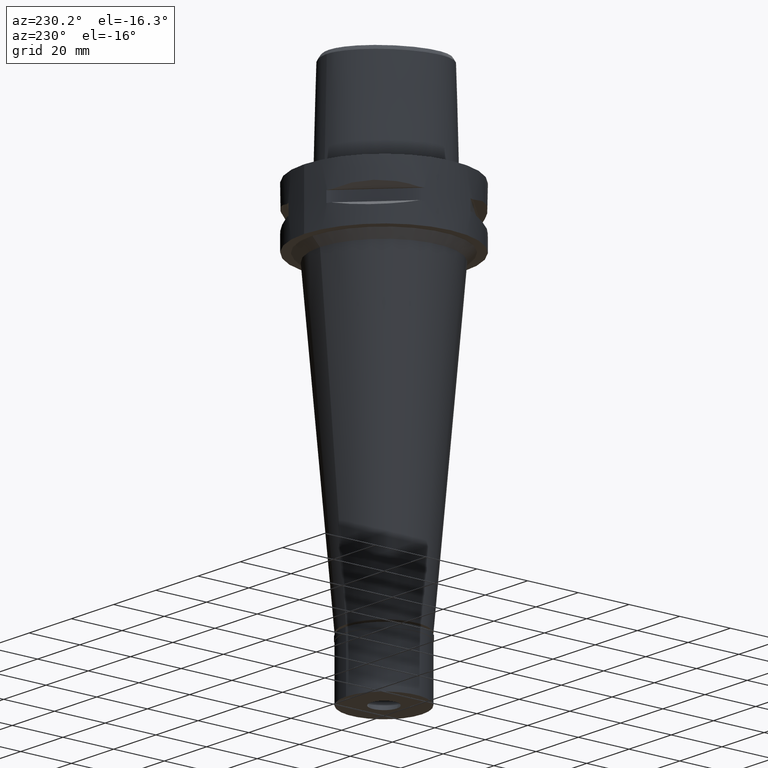
[diagram: clean part render]
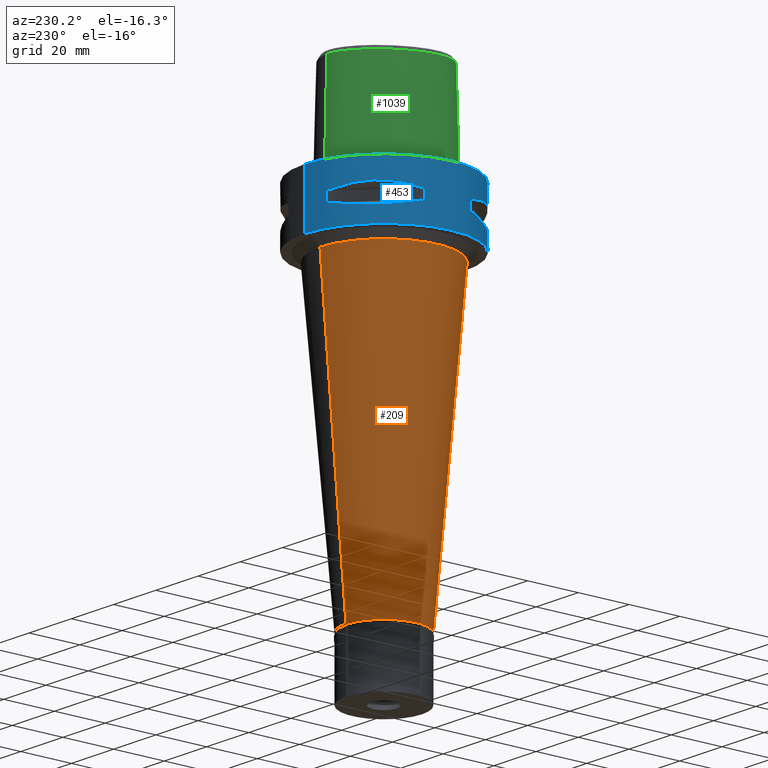
[diagram: same view with three faces highlighted in distinct colors, each labeled with its STEP entity id]
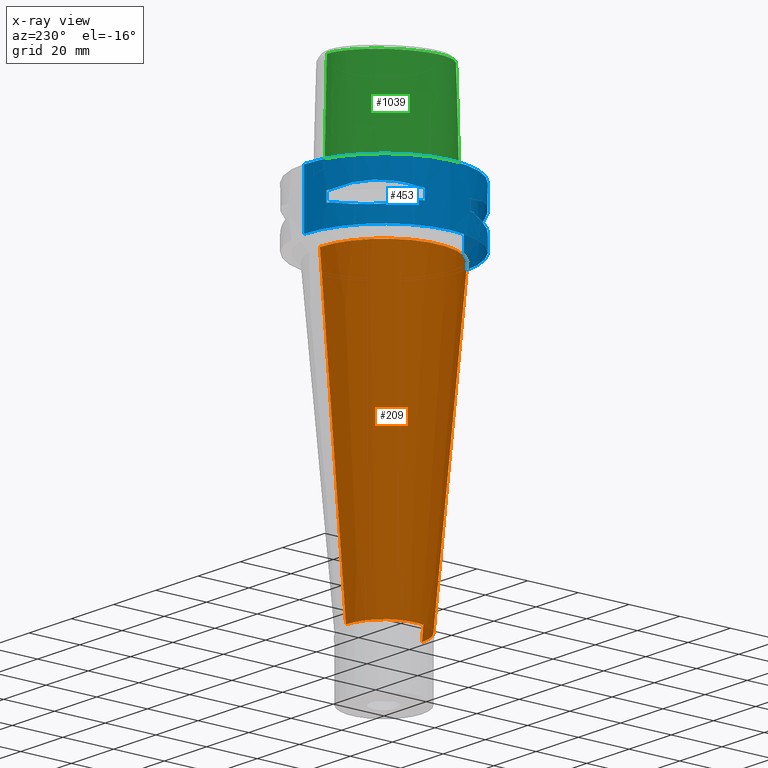
[diagram: x-ray of the same camera — body ghosted, the three highlighted faces saturated]
A machine part, auxiliary view with three faces highlighted in distinct colors.
The next image is the same camera in x-ray (body ghosted, the three faces saturated) — at least one of them is partly hidden behind the body in this view.
Their STEP definitions:

[orange] entity #209 — the highlighted conical surface has half-angle 5 deg.
#23 = CARTESIAN_POINT ( 'NONE',  ( 0.0000000000000000000, 25.25367136523999889, -25.00000000000000000 ) ) ;
#36 = DIRECTION ( 'NONE',  ( 0.0000000000000000000, -1.000000000000000000, 0.0000000000000000000 ) ) ;
#138 = VERTEX_POINT ( 'NONE', #4093 ) ;
#167 = AXIS2_PLACEMENT_3D ( 'NONE', #2428, #4799, #36 ) ;
#209 = ADVANCED_FACE ( 'NONE', ( #3715 ), #883, .T. ) ;
#307 = VECTOR ( 'NONE', #3526, 1000.000000000000227 ) ;
#549 = EDGE_CURVE ( 'NONE', #1523, #758, #2286, .T. ) ;
#758 = VERTEX_POINT ( 'NONE', #3136 ) ;
#784 = DIRECTION ( 'NONE',  ( 0.0000000000000000000, -0.08715574274766398066, -0.9961946980917449901 ) ) ;
#832 = CARTESIAN_POINT ( 'NONE',  ( 0.0000000000000000000, -25.25367136523999889, -25.00000000000000000 ) ) ;
#883 = CONICAL_SURFACE ( 'NONE', #2998, 20.12683568262000122, 0.08726646259969973729 ) ;
#1054 = ORIENTED_EDGE ( 'NONE', *, *, #4336, .T. ) ;
#1215 = ORIENTED_EDGE ( 'NONE', *, *, #3475, .T. ) ;
#1337 = CARTESIAN_POINT ( 'NONE',  ( 0.0000000000000000000, -1.023804724086999888E-14, -142.1999999999999886 ) ) ;
#1523 = VERTEX_POINT ( 'NONE', #3384 ) ;
#1774 = ORIENTED_EDGE ( 'NONE', *, *, #2547, .T. ) ;
#1801 = CIRCLE ( 'NONE', #4500, 15.00000000000000000 ) ;
#2286 = LINE ( 'NONE', #832, #307 ) ;
#2428 = CARTESIAN_POINT ( 'NONE',  ( 0.0000000000000000000, 0.0000000000000000000, -25.00000000000000000 ) ) ;
#2547 = EDGE_CURVE ( 'NONE', #138, #2775, #5063, .T. ) ;
#2775 = VERTEX_POINT ( 'NONE', #4771 ) ;
#2998 = AXIS2_PLACEMENT_3D ( 'NONE', #3250, #4062, #4446 ) ;
#3012 = VECTOR ( 'NONE', #784, 1000.000000000000227 ) ;
#3136 = CARTESIAN_POINT ( 'NONE',  ( 0.0000000000000000000, -15.00000000000000000, -142.1999999999999886 ) ) ;
#3250 = CARTESIAN_POINT ( 'NONE',  ( 0.0000000000000000000, -1.023804724086999888E-14, -83.59999999999999432 ) ) ;
#3384 = CARTESIAN_POINT ( 'NONE',  ( 0.0000000000000000000, -25.25367136523999889, -25.00000000000000000 ) ) ;
#3446 = CIRCLE ( 'NONE', #167, 25.25367136523999889 ) ;
#3475 = EDGE_CURVE ( 'NONE', #1523, #138, #3446, .T. ) ;
#3526 = DIRECTION ( 'NONE',  ( 0.0000000000000000000, 0.08715574274766398066, -0.9961946980917449901 ) ) ;
#3680 = ORIENTED_EDGE ( 'NONE', *, *, #549, .F. ) ;
#3702 = DIRECTION ( 'NONE',  ( 0.0000000000000000000, 1.000000000000000000, 0.0000000000000000000 ) ) ;
#3715 = FACE_OUTER_BOUND ( 'NONE', #3785, .T. ) ;
#3785 = EDGE_LOOP ( 'NONE', ( #1054, #3680, #1215, #1774 ) ) ;
#4062 = DIRECTION ( 'NONE',  ( 0.0000000000000000000, 0.0000000000000000000, 1.000000000000000000 ) ) ;
#4093 = CARTESIAN_POINT ( 'NONE',  ( 0.0000000000000000000, 25.25367136523999889, -25.00000000000000000 ) ) ;
#4336 = EDGE_CURVE ( 'NONE', #2775, #758, #1801, .T. ) ;
#4446 = DIRECTION ( 'NONE',  ( 0.0000000000000000000, 1.000000000000000000, 0.0000000000000000000 ) ) ;
#4500 = AXIS2_PLACEMENT_3D ( 'NONE', #1337, #4508, #3702 ) ;
#4508 = DIRECTION ( 'NONE',  ( 0.0000000000000000000, 0.0000000000000000000, 1.000000000000000000 ) ) ;
#4771 = CARTESIAN_POINT ( 'NONE',  ( 0.0000000000000000000, 15.00000000000000000, -142.1999999999999886 ) ) ;
#4799 = DIRECTION ( 'NONE',  ( 0.0000000000000000000, 0.0000000000000000000, -1.000000000000000000 ) ) ;
#5063 = LINE ( 'NONE', #23, #3012 ) ;

[blue] entity #453 — the highlighted cylindrical surface (partial cylindrical patch) has radius 31.5 mm, axis along (0, 0, -1).
#16 = DIRECTION ( 'NONE',  ( -0.9433937698468619626, 0.3316748332540863653, 0.0000000000000000000 ) ) ;
#24 = VERTEX_POINT ( 'NONE', #2722 ) ;
#33 = CARTESIAN_POINT ( 'NONE',  ( -26.29071741523710060, 17.35163608579668804, -15.46976201925415317 ) ) ;
#64 = VECTOR ( 'NONE', #4036, 1000.000000000000000 ) ;
#100 = LINE ( 'NONE', #4451, #1714 ) ;
#114 = CARTESIAN_POINT ( 'NONE',  ( -29.71690375017999841, 10.44775724750000023, -9.949999999998999201 ) ) ;
#136 = CARTESIAN_POINT ( 'NONE',  ( -20.64154884328072370, 23.90617837147176772, -8.160627831309685831 ) ) ;
#159 = CARTESIAN_POINT ( 'NONE',  ( 0.0000000000000000000, 0.0000000000000000000, -22.00000000000000000 ) ) ;
#174 = B_SPLINE_CURVE_WITH_KNOTS ( 'NONE', 3,
 ( #1035, #1414, #2963, #2573, #3364, #4152, #4921, #5031, #3827, #267, #5008, #1469, #3470, #4209, #2232, #1821, #2253, #1514, #2710, #748, #3100, #4589, #1159, #2306 ),
 .UNSPECIFIED., .F., .F.,
 ( 4, 1, 1, 1, 1, 1, 2, 2, 2, 1, 1, 1, 1, 1, 2, 2, 4 ),
 ( 0.0000000000000000000, 0.1249999999999912292, 0.1874999999999869826, 0.2187499999999850120, 0.2343749999999839295, 0.2421874999999835409, 0.2460937499999835687, 0.2499999999999836242, 0.4999999999999924505, 0.6249999999999968914, 0.6874999999999992228, 0.7187500000000003331, 0.7343750000000009992, 0.7421875000000014433, 0.7460937500000016653, 0.7500000000000019984, 1.000000000000000000 ),
 .UNSPECIFIED. ) ;
#177 = CIRCLE ( 'NONE', #3936, 31.50000000000000000 ) ;
#204 = ORIENTED_EDGE ( 'NONE', *, *, #909, .F. ) ;
#228 = VECTOR ( 'NONE', #4316, 1000.000000000000000 ) ;
#233 = CARTESIAN_POINT ( 'NONE',  ( -29.71690375017999841, -10.44775724750000023, -9.949999999998999201 ) ) ;
#251 = CARTESIAN_POINT ( 'NONE',  ( -14.84430321578703804, -27.88210502983994843, -8.906184731967037749 ) ) ;
#267 = CARTESIAN_POINT ( 'NONE',  ( -26.58330558444475145, -16.89910283486517528, -15.40446471307230070 ) ) ;
#289 = VERTEX_POINT ( 'NONE', #4418 ) ;
#290 = CARTESIAN_POINT ( 'NONE',  ( 0.0000000000000000000, 0.0000000000000000000, -14.05000000000000071 ) ) ;
#300 = B_SPLINE_CURVE_WITH_KNOTS ( 'NONE', 3,
 ( #413, #4406, #3130, #1204, #2329, #2835, #1254, #1972, #3969, #3949, #4740, #2809, #4796, #3518, #3235, #3543, #33, #1611, #1281, #2759, #3897, #4334, #387, #2049 ),
 .UNSPECIFIED., .F., .F.,
 ( 4, 1, 1, 1, 1, 1, 2, 2, 2, 1, 1, 1, 1, 1, 2, 2, 4 ),
 ( 0.0000000000000000000, 0.1249999999999917843, 0.1874999999999877320, 0.2187499999999857059, 0.2343749999999849287, 0.2421874999999843736, 0.2460937499999842071, 0.2499999999999840128, 0.4999999999999846789, 0.6249999999999850120, 0.6874999999999850120, 0.7187499999999851230, 0.7343749999999852340, 0.7421874999999852340, 0.7460937499999851230, 0.7499999999999851230, 1.000000000000000000 ),
 .UNSPECIFIED. ) ;
#315 = DIRECTION ( 'NONE',  ( -0.2851174276831918153, -0.9584925938322735872, 0.0000000000000000000 ) ) ;
#318 = VERTEX_POINT ( 'NONE', #555 ) ;
#331 = CARTESIAN_POINT ( 'NONE',  ( 0.0000000000000000000, 0.0000000000000000000, -9.950000000000001066 ) ) ;
#333 = CIRCLE ( 'NONE', #4918, 31.50000000000000711 ) ;
#340 = DIRECTION ( 'NONE',  ( 0.0000000000000000000, 0.0000000000000000000, -1.000000000000000000 ) ) ;
#387 = CARTESIAN_POINT ( 'NONE',  ( -28.91382665368951876, 12.73197616788052500, -14.65467361753852060 ) ) ;
#393 = DIRECTION ( 'NONE',  ( 0.0000000000000000000, 0.0000000000000000000, 1.000000000000000000 ) ) ;
#397 = VERTEX_POINT ( 'NONE', #4168 ) ;
#413 = CARTESIAN_POINT ( 'NONE',  ( -10.44775724750000023, 29.71690375017999841, -14.05000000000000071 ) ) ;
#415 = AXIS2_PLACEMENT_3D ( 'NONE', #1111, #1920, #1841 ) ;
#453 = ADVANCED_FACE ( 'NONE', ( #3737, #609, #3328 ), #4884, .T. ) ;
#528 = CARTESIAN_POINT ( 'NONE',  ( -27.88210502983995553, 14.84430321578703271, -8.906184731967041301 ) ) ;
#532 = LINE ( 'NONE', #2409, #1142 ) ;
#538 = CARTESIAN_POINT ( 'NONE',  ( -30.19251670572000279, 8.981198972019999616, -14.05000000000000071 ) ) ;
#555 = CARTESIAN_POINT ( 'NONE',  ( -8.981198972019999616, -30.19251670572000279, -14.05000000000000071 ) ) ;
#590 = EDGE_CURVE ( 'NONE', #318, #1471, #3454, .T. ) ;
#603 = CARTESIAN_POINT ( 'NONE',  ( -30.19251670572000279, -8.981198972017999438, -14.05000000000000071 ) ) ;
#609 = FACE_BOUND ( 'NONE', #1354, .T. ) ;
#636 = VERTEX_POINT ( 'NONE', #2361 ) ;
#658 = CIRCLE ( 'NONE', #4177, 31.50000000000001776 ) ;
#703 = CARTESIAN_POINT ( 'NONE',  ( -29.71690375017999841, -10.44775724750000023, -9.949999999998999201 ) ) ;
#743 = EDGE_CURVE ( 'NONE', #397, #4087, #2510, .T. ) ;
#748 = CARTESIAN_POINT ( 'NONE',  ( -16.98999780422078132, -26.52527364208593141, -15.41788098766319060 ) ) ;
#796 = DIRECTION ( 'NONE',  ( -0.9584925938322735872, 0.2851174276831918153, 0.0000000000000000000 ) ) ;
#801 = EDGE_CURVE ( 'NONE', #2906, #4087, #4856, .T. ) ;
#858 = CARTESIAN_POINT ( 'NONE',  ( -12.70092055730904868, 28.92474506844682125, -9.353547358226720121 ) ) ;
#900 = VERTEX_POINT ( 'NONE', #4782 ) ;
#909 = EDGE_CURVE ( 'NONE', #4790, #289, #2086, .T. ) ;
#938 = LINE ( 'NONE', #2180, #4756 ) ;
#954 = VERTEX_POINT ( 'NONE', #4144 ) ;
#977 = AXIS2_PLACEMENT_3D ( 'NONE', #3903, #393, #16 ) ;
#1035 = CARTESIAN_POINT ( 'NONE',  ( -29.71690375017999841, -10.44775724750000023, -14.05000000000000071 ) ) ;
#1076 = CARTESIAN_POINT ( 'NONE',  ( -25.37277178168285374, -18.81455742163204548, -8.309746333127383977 ) ) ;
#1079 = ORIENTED_EDGE ( 'NONE', *, *, #590, .F. ) ;
#1111 = CARTESIAN_POINT ( 'NONE',  ( 0.0000000000000000000, 0.0000000000000000000, -9.950000000000001066 ) ) ;
#1142 = VECTOR ( 'NONE', #1192, 1000.000000000000000 ) ;
#1159 = CARTESIAN_POINT ( 'NONE',  ( -12.73197616787212993, -28.91382665369246752, -14.65467361753630549 ) ) ;
#1161 = DIRECTION ( 'NONE',  ( -0.3316748332540863653, 0.9433937698468619626, 0.0000000000000000000 ) ) ;
#1192 = DIRECTION ( 'NONE',  ( 0.0000000000000000000, 0.0000000000000000000, -1.000000000000000000 ) ) ;
#1204 = CARTESIAN_POINT ( 'NONE',  ( -15.11986997310366299, 27.64634172018154246, -15.11207862403683144 ) ) ;
#1234 = CIRCLE ( 'NONE', #1724, 31.50000000000000711 ) ;
#1254 = CARTESIAN_POINT ( 'NONE',  ( -16.70616724745912407, 26.70521063584489596, -15.37546661817712490 ) ) ;
#1281 = CARTESIAN_POINT ( 'NONE',  ( -26.48642424310478205, 17.05047092244226903, -15.42670883407652305 ) ) ;
#1326 = ORIENTED_EDGE ( 'NONE', *, *, #1826, .T. ) ;
#1354 = EDGE_LOOP ( 'NONE', ( #4287, #4114, #3876, #5022, #4421, #4956, #2067, #3334 ) ) ;
#1375 = DIRECTION ( 'NONE',  ( 0.0000000000000000000, 0.0000000000000000000, -1.000000000000000000 ) ) ;
#1385 = DIRECTION ( 'NONE',  ( 0.0000000000000000000, 0.0000000000000000000, 1.000000000000000000 ) ) ;
#1405 = CARTESIAN_POINT ( 'NONE',  ( -20.64154884328073081, -23.90617837147176061, -8.160613588465022161 ) ) ;
#1414 = CARTESIAN_POINT ( 'NONE',  ( -29.31542262584164504, -11.58970337495982328, -14.35229357167352049 ) ) ;
#1469 = CARTESIAN_POINT ( 'NONE',  ( -23.89673728055697310, -20.65093790435582122, -15.83935804901768307 ) ) ;
#1470 = CARTESIAN_POINT ( 'NONE',  ( 0.0000000000000000000, -31.50000000000000000, 0.0000000000000000000 ) ) ;
#1471 = VERTEX_POINT ( 'NONE', #2152 ) ;
#1478 = CARTESIAN_POINT ( 'NONE',  ( -18.81462633032051102, -25.37272068398778657, -8.309724968596489347 ) ) ;
#1514 = CARTESIAN_POINT ( 'NONE',  ( -17.14106442934748742, -26.42800887047532754, -15.43984550238493547 ) ) ;
#1611 = CARTESIAN_POINT ( 'NONE',  ( -26.42800887047543767, 17.14106442934696162, -15.43984550238475251 ) ) ;
#1618 = CARTESIAN_POINT ( 'NONE',  ( -30.19251670572000279, 8.981198972017999438, -14.05000000000000071 ) ) ;
#1639 = DIRECTION ( 'NONE',  ( 0.0000000000000000000, 0.0000000000000000000, -1.000000000000000000 ) ) ;
#1653 = EDGE_CURVE ( 'NONE', #4501, #3103, #3101, .T. ) ;
#1673 = CARTESIAN_POINT ( 'NONE',  ( -10.44775724750000023, 29.71690375017999841, -9.949999999998999201 ) ) ;
#1676 = VERTEX_POINT ( 'NONE', #2955 ) ;
#1714 = VECTOR ( 'NONE', #3254, 1000.000000000000000 ) ;
#1717 = CIRCLE ( 'NONE', #3847, 31.50000000000001776 ) ;
#1719 = DIRECTION ( 'NONE',  ( 0.0000000000000000000, 0.0000000000000000000, 1.000000000000000000 ) ) ;
#1724 = AXIS2_PLACEMENT_3D ( 'NONE', #1947, #4261, #1161 ) ;
#1749 = CARTESIAN_POINT ( 'NONE',  ( 0.0000000000000000000, 31.50000000000000000, 0.0000000000000000000 ) ) ;
#1785 = ORIENTED_EDGE ( 'NONE', *, *, #3996, .T. ) ;
#1794 = DIRECTION ( 'NONE',  ( 0.0000000000000000000, 0.0000000000000000000, -1.000000000000000000 ) ) ;
#1821 = CARTESIAN_POINT ( 'NONE',  ( -17.76952662671988392, -26.01217882834739470, -15.52665221626113912 ) ) ;
#1826 = EDGE_CURVE ( 'NONE', #2401, #4724, #2430, .T. ) ;
#1828 = CARTESIAN_POINT ( 'NONE',  ( 0.0000000000000000000, 0.0000000000000000000, 7.915000000000000036 ) ) ;
#1841 = DIRECTION ( 'NONE',  ( -0.9584925938322735872, -0.2851174276831918153, 0.0000000000000000000 ) ) ;
#1920 = DIRECTION ( 'NONE',  ( 0.0000000000000000000, 0.0000000000000000000, 1.000000000000000000 ) ) ;
#1947 = CARTESIAN_POINT ( 'NONE',  ( 0.0000000000000000000, 0.0000000000000000000, -14.05000000000000071 ) ) ;
#1972 = CARTESIAN_POINT ( 'NONE',  ( -16.80193241490601253, 26.64486562695759631, -15.38992683735703437 ) ) ;
#2000 = DIRECTION ( 'NONE',  ( -0.9433937698468619626, -0.3316748332540863653, 0.0000000000000000000 ) ) ;
#2007 = ORIENTED_EDGE ( 'NONE', *, *, #2706, .T. ) ;
#2049 = CARTESIAN_POINT ( 'NONE',  ( -29.71690375017999841, 10.44775724750000023, -14.05000000000000071 ) ) ;
#2057 = CARTESIAN_POINT ( 'NONE',  ( -10.44775724750000023, 29.71690375017999841, -14.05000000000000071 ) ) ;
#2067 = ORIENTED_EDGE ( 'NONE', *, *, #3786, .T. ) ;
#2086 = LINE ( 'NONE', #2468, #64 ) ;
#2148 = ORIENTED_EDGE ( 'NONE', *, *, #1653, .T. ) ;
#2149 = EDGE_CURVE ( 'NONE', #636, #397, #4090, .T. ) ;
#2152 = CARTESIAN_POINT ( 'NONE',  ( -8.981198972017999438, -30.19251670572000279, -9.950000000000001066 ) ) ;
#2166 = DIRECTION ( 'NONE',  ( 0.0000000000000000000, -1.000000000000000000, 0.0000000000000000000 ) ) ;
#2170 = CARTESIAN_POINT ( 'NONE',  ( -10.44775724750000023, -29.71690375017999841, -9.949999999998999201 ) ) ;
#2180 = CARTESIAN_POINT ( 'NONE',  ( -8.981198972017999438, 30.19251670572000279, -9.950000000000001066 ) ) ;
#2186 = ORIENTED_EDGE ( 'NONE', *, *, #4846, .T. ) ;
#2199 = CIRCLE ( 'NONE', #3427, 31.50000000000000000 ) ;
#2210 = VERTEX_POINT ( 'NONE', #2057 ) ;
#2232 = CARTESIAN_POINT ( 'NONE',  ( -18.59229662065117594, -25.43927894891756125, -15.62866126334438732 ) ) ;
#2245 = EDGE_LOOP ( 'NONE', ( #3285, #1079, #1785, #2624, #1326, #2845, #2186, #2148 ) ) ;
#2253 = CARTESIAN_POINT ( 'NONE',  ( -17.35163608579770766, -26.29071741523690875, -15.46976201925451022 ) ) ;
#2288 = CARTESIAN_POINT ( 'NONE',  ( 0.0000000000000000000, 0.0000000000000000000, -14.05000000000000071 ) ) ;
#2306 = CARTESIAN_POINT ( 'NONE',  ( -10.44775724750000023, -29.71690375017999841, -14.05000000000000071 ) ) ;
#2329 = CARTESIAN_POINT ( 'NONE',  ( -16.03138450078630584, 27.11872488589149199, -15.26880420107739234 ) ) ;
#2361 = CARTESIAN_POINT ( 'NONE',  ( -10.44775724750000023, 29.71690375017999841, -9.949999999998999201 ) ) ;
#2392 = VERTEX_POINT ( 'NONE', #1749 ) ;
#2401 = VERTEX_POINT ( 'NONE', #2537 ) ;
#2409 = CARTESIAN_POINT ( 'NONE',  ( -30.19251670572000279, -8.981198972017999438, -9.950000000000001066 ) ) ;
#2430 = CIRCLE ( 'NONE', #3510, 31.50000000000000711 ) ;
#2468 = CARTESIAN_POINT ( 'NONE',  ( 0.0000000000000000000, -31.50000000000000000, 0.0000000000000000000 ) ) ;
#2506 = AXIS2_PLACEMENT_3D ( 'NONE', #1828, #1375, #2166 ) ;
#2510 = CIRCLE ( 'NONE', #977, 31.50000000000000711 ) ;
#2527 = CARTESIAN_POINT ( 'NONE',  ( 0.0000000000000000000, 0.0000000000000000000, -9.950000000000001066 ) ) ;
#2537 = CARTESIAN_POINT ( 'NONE',  ( -29.71690375017999841, -10.44775724750000023, -14.05000000000000071 ) ) ;
#2573 = CARTESIAN_POINT ( 'NONE',  ( -27.64634172017658642, -15.11986997311774417, -15.11207862404057423 ) ) ;
#2624 = ORIENTED_EDGE ( 'NONE', *, *, #3992, .F. ) ;
#2642 = CARTESIAN_POINT ( 'NONE',  ( -23.90617837147174640, -20.64154884328073791, -8.160627831309684055 ) ) ;
#2695 = CIRCLE ( 'NONE', #415, 31.50000000000001776 ) ;
#2706 = EDGE_CURVE ( 'NONE', #4790, #2392, #2199, .T. ) ;
#2710 = CARTESIAN_POINT ( 'NONE',  ( -17.05047092244258522, -26.48642424310472876, -15.42670883407663496 ) ) ;
#2722 = CARTESIAN_POINT ( 'NONE',  ( -8.981198972019999616, 30.19251670572000279, -9.950000000000001066 ) ) ;
#2759 = CARTESIAN_POINT ( 'NONE',  ( -26.52527364208594562, 16.98999780422062500, -15.41788098766312487 ) ) ;
#2809 = CARTESIAN_POINT ( 'NONE',  ( -20.65093790435489396, 23.89673728056195756, -15.83935804901932087 ) ) ;
#2835 = CARTESIAN_POINT ( 'NONE',  ( -16.48208282229096611, 26.84474411198699784, -15.34094883778013596 ) ) ;
#2845 = ORIENTED_EDGE ( 'NONE', *, *, #3256, .F. ) ;
#2898 = CARTESIAN_POINT ( 'NONE',  ( -18.81455742163205613, 25.37277178168285729, -8.309746333127387530 ) ) ;
#2906 = VERTEX_POINT ( 'NONE', #538 ) ;
#2914 = DIRECTION ( 'NONE',  ( 0.0000000000000000000, 1.000000000000000000, 0.0000000000000000000 ) ) ;
#2918 = VECTOR ( 'NONE', #3188, 1000.000000000000000 ) ;
#2955 = CARTESIAN_POINT ( 'NONE',  ( -29.71690375017999841, 10.44775724750000023, -14.05000000000000071 ) ) ;
#2963 = CARTESIAN_POINT ( 'NONE',  ( -28.62019653467925551, -13.25636937906381974, -14.74888225542034448 ) ) ;
#3004 = CARTESIAN_POINT ( 'NONE',  ( -12.70097436183466577, -28.92472615205409880, -9.353533115206120740 ) ) ;
#3014 = EDGE_CURVE ( 'NONE', #2392, #954, #100, .T. ) ;
#3100 = CARTESIAN_POINT ( 'NONE',  ( -16.96123479564944247, -26.54368690921640450, -15.41365572341321766 ) ) ;
#3101 = B_SPLINE_CURVE_WITH_KNOTS ( 'NONE', 3,
 ( #703, #3815, #4913, #1076, #2642, #1405, #1478, #251, #3004, #4122 ),
 .UNSPECIFIED., .F., .F.,
 ( 4, 2, 2, 2, 4 ),
 ( 0.0000000000000000000, 0.2499999999999998335, 0.4999999999999998890, 0.7499999999999998890, 1.000000000000000000 ),
 .UNSPECIFIED. ) ;
#3103 = VERTEX_POINT ( 'NONE', #2170 ) ;
#3130 = CARTESIAN_POINT ( 'NONE',  ( -13.25636937904505785, 28.62019653468586355, -14.74888225541535292 ) ) ;
#3156 = DIRECTION ( 'NONE',  ( 0.0000000000000000000, 0.0000000000000000000, -1.000000000000000000 ) ) ;
#3188 = DIRECTION ( 'NONE',  ( 0.0000000000000000000, 0.0000000000000000000, 1.000000000000000000 ) ) ;
#3193 = CARTESIAN_POINT ( 'NONE',  ( -8.981198972017999438, 30.19251670572000279, -14.05000000000000071 ) ) ;
#3219 = VERTEX_POINT ( 'NONE', #3193 ) ;
#3235 = CARTESIAN_POINT ( 'NONE',  ( -25.43927894891815811, 18.59229662064788258, -15.62866126334327710 ) ) ;
#3242 = CARTESIAN_POINT ( 'NONE',  ( -23.90617837147178193, 20.64154884328071660, -8.160613588465022161 ) ) ;
#3254 = DIRECTION ( 'NONE',  ( 0.0000000000000000000, 0.0000000000000000000, -1.000000000000000000 ) ) ;
#3256 = EDGE_CURVE ( 'NONE', #900, #4724, #532, .T. ) ;
#3271 = CARTESIAN_POINT ( 'NONE',  ( -25.37272068398780434, 18.81462633032049325, -8.309724968596489347 ) ) ;
#3285 = ORIENTED_EDGE ( 'NONE', *, *, #4581, .T. ) ;
#3328 = FACE_BOUND ( 'NONE', #2245, .T. ) ;
#3334 = ORIENTED_EDGE ( 'NONE', *, *, #2149, .T. ) ;
#3364 = CARTESIAN_POINT ( 'NONE',  ( -27.11872488588860008, -16.03138450079452682, -15.26880420107959146 ) ) ;
#3427 = AXIS2_PLACEMENT_3D ( 'NONE', #4312, #3156, #3951 ) ;
#3454 = LINE ( 'NONE', #5015, #228 ) ;
#3470 = CARTESIAN_POINT ( 'NONE',  ( -21.46242677078074834, -23.08532645888130830, -15.83938991065315172 ) ) ;
#3510 = AXIS2_PLACEMENT_3D ( 'NONE', #2288, #4293, #2000 ) ;
#3518 = CARTESIAN_POINT ( 'NONE',  ( -24.23018836745557181, 20.18579225685711265, -15.78559396978928397 ) ) ;
#3543 = CARTESIAN_POINT ( 'NONE',  ( -26.01217882834774997, 17.76952662671796901, -15.52665221626049608 ) ) ;
#3619 = CARTESIAN_POINT ( 'NONE',  ( 0.0000000000000000000, 0.0000000000000000000, -14.05000000000000071 ) ) ;
#3737 = FACE_OUTER_BOUND ( 'NONE', #4981, .T. ) ;
#3773 = AXIS2_PLACEMENT_3D ( 'NONE', #2527, #1385, #4455 ) ;
#3786 = EDGE_CURVE ( 'NONE', #24, #636, #4997, .T. ) ;
#3815 = CARTESIAN_POINT ( 'NONE',  ( -28.92474506844684257, -12.70092055730902736, -9.353547358226718345 ) ) ;
#3827 = CARTESIAN_POINT ( 'NONE',  ( -26.60451452154724805, -16.86571563436727317, -15.39949295786030348 ) ) ;
#3847 = AXIS2_PLACEMENT_3D ( 'NONE', #290, #340, #315 ) ;
#3876 = ORIENTED_EDGE ( 'NONE', *, *, #4223, .T. ) ;
#3897 = CARTESIAN_POINT ( 'NONE',  ( -26.54368690921645069, 16.96123479564930747, -15.41365572341317147 ) ) ;
#3903 = CARTESIAN_POINT ( 'NONE',  ( 0.0000000000000000000, 0.0000000000000000000, -9.950000000000001066 ) ) ;
#3936 = AXIS2_PLACEMENT_3D ( 'NONE', #159, #1719, #2914 ) ;
#3949 = CARTESIAN_POINT ( 'NONE',  ( -16.89910283486523923, 26.58330558444462355, -15.40446471307224741 ) ) ;
#3951 = DIRECTION ( 'NONE',  ( 0.0000000000000000000, -1.000000000000000000, 0.0000000000000000000 ) ) ;
#3969 = CARTESIAN_POINT ( 'NONE',  ( -16.86571563436660171, 26.60451452154748608, -15.39949295786010097 ) ) ;
#3992 = EDGE_CURVE ( 'NONE', #2401, #4695, #174, .T. ) ;
#3996 = EDGE_CURVE ( 'NONE', #318, #4695, #1717, .T. ) ;
#4036 = DIRECTION ( 'NONE',  ( 0.0000000000000000000, 0.0000000000000000000, -1.000000000000000000 ) ) ;
#4087 = VERTEX_POINT ( 'NONE', #4669 ) ;
#4090 = B_SPLINE_CURVE_WITH_KNOTS ( 'NONE', 3,
 ( #1673, #858, #4801, #2898, #136, #3242, #3271, #528, #4389, #114 ),
 .UNSPECIFIED., .F., .F.,
 ( 4, 2, 2, 2, 4 ),
 ( 0.0000000000000000000, 0.2500000000000000000, 0.5000000000000000000, 0.7500000000000000000, 1.000000000000000000 ),
 .UNSPECIFIED. ) ;
#4114 = ORIENTED_EDGE ( 'NONE', *, *, #801, .F. ) ;
#4117 = ORIENTED_EDGE ( 'NONE', *, *, #3014, .T. ) ;
#4122 = CARTESIAN_POINT ( 'NONE',  ( -10.44775724750000023, -29.71690375017999841, -9.949999999998999201 ) ) ;
#4144 = CARTESIAN_POINT ( 'NONE',  ( 0.0000000000000000000, 31.50000000000000000, -22.00000000000000000 ) ) ;
#4152 = CARTESIAN_POINT ( 'NONE',  ( -26.84474411198545596, -16.48208282229538213, -15.34094883778132790 ) ) ;
#4168 = CARTESIAN_POINT ( 'NONE',  ( -29.71690375017999841, 10.44775724750000023, -9.949999999998999201 ) ) ;
#4177 = AXIS2_PLACEMENT_3D ( 'NONE', #3619, #1639, #796 ) ;
#4183 = EDGE_CURVE ( 'NONE', #2210, #1676, #300, .T. ) ;
#4209 = CARTESIAN_POINT ( 'NONE',  ( -20.18579225686149314, -24.23018836745477245, -15.78559396979075125 ) ) ;
#4223 = EDGE_CURVE ( 'NONE', #2906, #1676, #658, .T. ) ;
#4249 = DIRECTION ( 'NONE',  ( -0.3316748332540863653, -0.9433937698468619626, 0.0000000000000000000 ) ) ;
#4261 = DIRECTION ( 'NONE',  ( 0.0000000000000000000, 0.0000000000000000000, -1.000000000000000000 ) ) ;
#4287 = ORIENTED_EDGE ( 'NONE', *, *, #743, .T. ) ;
#4293 = DIRECTION ( 'NONE',  ( 0.0000000000000000000, 0.0000000000000000000, -1.000000000000000000 ) ) ;
#4312 = CARTESIAN_POINT ( 'NONE',  ( 0.0000000000000000000, 0.0000000000000000000, 0.0000000000000000000 ) ) ;
#4316 = DIRECTION ( 'NONE',  ( 0.0000000000000000000, 0.0000000000000000000, 1.000000000000000000 ) ) ;
#4326 = DIRECTION ( 'NONE',  ( 0.0000000000000000000, 0.0000000000000000000, 1.000000000000000000 ) ) ;
#4334 = CARTESIAN_POINT ( 'NONE',  ( -27.86285265926610322, 14.89252659057099493, -15.10765629751760031 ) ) ;
#4352 = CARTESIAN_POINT ( 'NONE',  ( -10.44775724750000023, -29.71690375017999841, -14.05000000000000071 ) ) ;
#4389 = CARTESIAN_POINT ( 'NONE',  ( -28.92472615205409170, 12.70097436183465867, -9.353533115206120740 ) ) ;
#4406 = CARTESIAN_POINT ( 'NONE',  ( -11.58970337494912251, 29.31542262584540737, -14.35229357167066233 ) ) ;
#4418 = CARTESIAN_POINT ( 'NONE',  ( 0.0000000000000000000, -31.50000000000000000, -22.00000000000000000 ) ) ;
#4421 = ORIENTED_EDGE ( 'NONE', *, *, #4943, .T. ) ;
#4451 = CARTESIAN_POINT ( 'NONE',  ( 0.0000000000000000000, 31.50000000000000000, 0.0000000000000000000 ) ) ;
#4455 = DIRECTION ( 'NONE',  ( -0.2851174276831918153, 0.9584925938322735872, 0.0000000000000000000 ) ) ;
#4501 = VERTEX_POINT ( 'NONE', #233 ) ;
#4581 = EDGE_CURVE ( 'NONE', #3103, #1471, #333, .T. ) ;
#4589 = CARTESIAN_POINT ( 'NONE',  ( -14.89252659056261052, -27.86285265926905197, -15.10765629751539230 ) ) ;
#4669 = CARTESIAN_POINT ( 'NONE',  ( -30.19251670572000279, 8.981198972017999438, -9.950000000000001066 ) ) ;
#4695 = VERTEX_POINT ( 'NONE', #4352 ) ;
#4724 = VERTEX_POINT ( 'NONE', #603 ) ;
#4740 = CARTESIAN_POINT ( 'NONE',  ( -18.86897208075099996, 25.32725744466366891, -15.69588095933659488 ) ) ;
#4756 = VECTOR ( 'NONE', #1794, 1000.000000000000000 ) ;
#4782 = CARTESIAN_POINT ( 'NONE',  ( -30.19251670572000279, -8.981198972019999616, -9.950000000000001066 ) ) ;
#4790 = VERTEX_POINT ( 'NONE', #1470 ) ;
#4796 = CARTESIAN_POINT ( 'NONE',  ( -23.08532645888177015, 21.46242677077824368, -15.83938991065229196 ) ) ;
#4801 = CARTESIAN_POINT ( 'NONE',  ( -14.84422749199032943, 27.88214534470564132, -8.906206096497943037 ) ) ;
#4846 = EDGE_CURVE ( 'NONE', #900, #4501, #2695, .T. ) ;
#4856 = LINE ( 'NONE', #1618, #2918 ) ;
#4884 = CYLINDRICAL_SURFACE ( 'NONE', #2506, 31.50000000000000000 ) ;
#4913 = CARTESIAN_POINT ( 'NONE',  ( -27.88214534470564843, -14.84422749199030811, -8.906206096497941260 ) ) ;
#4918 = AXIS2_PLACEMENT_3D ( 'NONE', #331, #4326, #4249 ) ;
#4921 = CARTESIAN_POINT ( 'NONE',  ( -26.70521063584408950, -16.70616724746141202, -15.37546661817775373 ) ) ;
#4943 = EDGE_CURVE ( 'NONE', #2210, #3219, #1234, .T. ) ;
#4956 = ORIENTED_EDGE ( 'NONE', *, *, #4967, .F. ) ;
#4967 = EDGE_CURVE ( 'NONE', #24, #3219, #938, .T. ) ;
#4981 = EDGE_LOOP ( 'NONE', ( #5053, #204, #2007, #4117 ) ) ;
#4997 = CIRCLE ( 'NONE', #3773, 31.50000000000001776 ) ;
#5008 = CARTESIAN_POINT ( 'NONE',  ( -25.32725744465475515, -18.86897208075581034, -15.69588095933493932 ) ) ;
#5015 = CARTESIAN_POINT ( 'NONE',  ( -8.981198972017999438, -30.19251670572000279, -14.05000000000000071 ) ) ;
#5022 = ORIENTED_EDGE ( 'NONE', *, *, #4183, .F. ) ;
#5028 = EDGE_CURVE ( 'NONE', #954, #289, #177, .T. ) ;
#5031 = CARTESIAN_POINT ( 'NONE',  ( -26.64486562695712379, -16.80193241490734835, -15.38992683735741451 ) ) ;
#5053 = ORIENTED_EDGE ( 'NONE', *, *, #5028, .T. ) ;

[green] entity #1039 — the highlighted face is a freeform B-spline surface patch.
#5 = CARTESIAN_POINT ( 'NONE',  ( -4.038047189179770236, -20.04588600821303501, 15.81762949444052246 ) ) ;
#15 = CARTESIAN_POINT ( 'NONE',  ( -21.99640701348999983, -0.2778990166614000445, -0.7304375801050999595 ) ) ;
#30 = CARTESIAN_POINT ( 'NONE',  ( -3.686640039273423319, -20.05085371969648378, 17.17691650729972608 ) ) ;
#37 = CARTESIAN_POINT ( 'NONE',  ( -20.65879052904000091, -10.48283621510999986, 11.93048047505000042 ) ) ;
#50 = CARTESIAN_POINT ( 'NONE',  ( -3.724367697017637813, -20.04896662180712497, 17.09120659051006541 ) ) ;
#74 = CARTESIAN_POINT ( 'NONE',  ( -3.538396763548709245, -20.05888067283489207, 17.47415606028659596 ) ) ;
#85 = CARTESIAN_POINT ( 'NONE',  ( 2.041042029990999821E-08, -19.88004246002000031, 31.80000004972000127 ) ) ;
#94 = CARTESIAN_POINT ( 'NONE',  ( -20.34961801675260418, -11.74885743987403508, -1.437749666988608760E-06 ) ) ;
#105 = CARTESIAN_POINT ( 'NONE',  ( -3.952973241258888937, -20.08624587561761743, 14.60894738506809709 ) ) ;
#112 = CARTESIAN_POINT ( 'NONE',  ( 0.6779535350897000212, -20.37023526533000251, 11.93048047505000042 ) ) ;
#119 = CARTESIAN_POINT ( 'NONE',  ( -16.95889174824362300, -15.67838870024704967, -1.437749666988608760E-06 ) ) ;
#141 = CARTESIAN_POINT ( 'NONE',  ( -7.571159452560623393, 21.31457034361661229, -1.437749666988608760E-06 ) ) ;
#220 = CARTESIAN_POINT ( 'NONE',  ( 0.6850314155840999675, 22.83959056899000117, 24.59139853019999933 ) ) ;
#245 = EDGE_CURVE ( 'NONE', #2196, #4910, #4012, .T. ) ;
#273 = CARTESIAN_POINT ( 'NONE',  ( -4.868968454906000609, 21.95285545916999581, 24.59139853019999933 ) ) ;
#287 = CARTESIAN_POINT ( 'NONE',  ( -0.8945856573126832467, -20.17742435737030959, 19.45218689967066084 ) ) ;
#305 = EDGE_CURVE ( 'NONE', #4311, #4441, #1322, .T. ) ;
#312 = CARTESIAN_POINT ( 'NONE',  ( -1.533511455572774462, -20.16025888516049847, 19.24845571506998709 ) ) ;
#322 = CARTESIAN_POINT ( 'NONE',  ( -11.02138184258999942, -18.31230465424999920, 24.59139853019999933 ) ) ;
#338 = CARTESIAN_POINT ( 'NONE',  ( -1.222436418487023335, -20.16967318534058151, 19.36171385434369796 ) ) ;
#346 = CARTESIAN_POINT ( 'NONE',  ( -20.76670354678000052, 4.663413653146999849, -0.7304375801050999595 ) ) ;
#371 = CARTESIAN_POINT ( 'NONE',  ( -17.88993660678000097, -13.52675025296000122, 37.25231658535999912 ) ) ;
#385 = CARTESIAN_POINT ( 'NONE',  ( -2.647522161654190409, -20.26593589461833744, 12.41993733201942263 ) ) ;
#392 = CARTESIAN_POINT ( 'NONE',  ( -21.13154892674999985, -6.714587083374000009, 37.25231658535999912 ) ) ;
#410 = CARTESIAN_POINT ( 'NONE',  ( -3.378917219881233613, -20.18042296661755941, 13.26717508011585878 ) ) ;
#422 = CARTESIAN_POINT ( 'NONE',  ( -10.14358078694999854, 18.45723421411999965, 37.25231658535999912 ) ) ;
#438 = CARTESIAN_POINT ( 'NONE',  ( -3.699028711252647206, -20.13326891470799396, 13.84698179887988978 ) ) ;
#457 = CARTESIAN_POINT ( 'NONE',  ( -3.024136408352561922, -20.22444627912442883, 12.80466769080733158 ) ) ;
#476 = CARTESIAN_POINT ( 'NONE',  ( -2.564517734345411082, 23.29328128539626164, -1.437749666988608760E-06 ) ) ;
#490 = CARTESIAN_POINT ( 'NONE',  ( -3.294693599458651700, -20.19174263028435234, 13.14094743667249254 ) ) ;
#508 = CARTESIAN_POINT ( 'NONE',  ( -22.05732877894942945, -6.847636723885096366, -1.437749666988608760E-06 ) ) ;
#541 = CARTESIAN_POINT ( 'NONE',  ( -3.736722311398999796, -19.67781602443999844, 31.80000000000000071 ) ) ;
#553 = VECTOR ( 'NONE', #948, 1000.000000000000114 ) ;
#607 = B_SPLINE_CURVE_WITH_KNOTS ( 'NONE', 3,
 ( #4502, #2094, #1010, #541 ),
 .UNSPECIFIED., .F., .F.,
 ( 4, 4 ),
 ( 0.0000000000000000000, 1.000000000000000000 ),
 .UNSPECIFIED. ) ;
#620 = CARTESIAN_POINT ( 'NONE',  ( 0.6657744346518000844, -19.73734270121000023, 37.25231658535999912 ) ) ;
#656 = CARTESIAN_POINT ( 'NONE',  ( -2.373090333111000039, 22.37624354570999685, 37.25231658535999912 ) ) ;
#672 = CARTESIAN_POINT ( 'NONE',  ( -1.656557867876204737, -20.15608475847800207, 19.19752105505822470 ) ) ;
#674 = CARTESIAN_POINT ( 'NONE',  ( -21.32871527669897560, -4.105831244394436474, 36.52186244848000740 ) ) ;
#681 = CARTESIAN_POINT ( 'NONE',  ( 0.4696382063760000114, 23.16972809696000013, 11.93048047505000042 ) ) ;
#693 = CARTESIAN_POINT ( 'NONE',  ( -2.004946554115309532, -20.14219031904388402, 19.01961090508743268 ) ) ;
#701 = CARTESIAN_POINT ( 'NONE',  ( -6.175998610012000789, -19.37631799262999976, 37.25231658535999912 ) ) ;
#717 = CARTESIAN_POINT ( 'NONE',  ( -2.620910454320059202, -20.11234871000608138, 18.58832188861294910 ) ) ;
#725 = CARTESIAN_POINT ( 'NONE',  ( -21.57281239023000197, -9.001246194475998053, -0.7304375801050999595 ) ) ;
#754 = CARTESIAN_POINT ( 'NONE',  ( -20.96392254533999733, -8.820258327664999953, 24.59139853019999933 ) ) ;
#770 = CARTESIAN_POINT ( 'NONE',  ( -4.048201904855770472, -20.04950689277237430, 15.62483520886270050 ) ) ;
#777 = CARTESIAN_POINT ( 'NONE',  ( -1.870070494244999937, -20.39691396694999881, 11.93048047505000042 ) ) ;
#793 = CARTESIAN_POINT ( 'NONE',  ( -3.474608496690548609, -20.06254674854062614, 17.58500429056359593 ) ) ;
#806 = CARTESIAN_POINT ( 'NONE',  ( -16.97022730955000114, -15.69280482917999997, -0.7304375801050999595 ) ) ;
#822 = CARTESIAN_POINT ( 'NONE',  ( -2.875633270581706924, -20.24102979138325864, 12.64810551045560949 ) ) ;
#847 = CARTESIAN_POINT ( 'NONE',  ( -4.050020239240827102, -20.05172727870759175, 15.52772083009781667 ) ) ;
#856 = B_SPLINE_CURVE_WITH_KNOTS ( 'NONE', 3,
 ( #2744, #4703, #3246, #1216 ),
 .UNSPECIFIED., .F., .F.,
 ( 4, 4 ),
 ( 0.0000000000000000000, 1.000000000000000000 ),
 .UNSPECIFIED. ) ;
#870 = EDGE_CURVE ( 'NONE', #4441, #4910, #3414, .T. ) ;
#875 = CARTESIAN_POINT ( 'NONE',  ( -3.258458186252930933, -20.07518877969969395, 17.91982202573088401 ) ) ;
#920 = B_SPLINE_CURVE_WITH_KNOTS ( 'NONE', 3,
 ( #85, #2178, #1647, #1791 ),
 .UNSPECIFIED., .F., .F.,
 ( 4, 4 ),
 ( 0.0000000000000000000, 1.000000000000000000 ),
 .UNSPECIFIED. ) ;
#922 = CARTESIAN_POINT ( 'NONE',  ( -2.113823675201001784, -20.67500003594079061, -1.437749666988608760E-06 ) ) ;
#937 = CARTESIAN_POINT ( 'NONE',  ( 3.796779495581999851E-11, 23.47499999999000053, 6.972200594645999482E-14 ) ) ;
#948 = DIRECTION ( 'NONE',  ( 1.535575874124960494E-12, 0.02499051290971940689, -0.9996876883629751687 ) ) ;
#956 = ORIENTED_EDGE ( 'NONE', *, *, #4051, .T. ) ;
#988 = CARTESIAN_POINT ( 'NONE',  ( 0.4479792504543000375, -20.05810161159000060, 24.59139853019999933 ) ) ;
#1010 = CARTESIAN_POINT ( 'NONE',  ( -3.704239276368590961, -19.64128040965313460, 33.37395414949332917 ) ) ;
#1039 = ADVANCED_FACE ( 'NONE', ( #2165 ), #2124, .T. ) ;
#1064 = CARTESIAN_POINT ( 'NONE',  ( -1.435479731732086428, -20.16346186668282670, 19.28735383016543636 ) ) ;
#1067 = CARTESIAN_POINT ( 'NONE',  ( -14.22011356156518325, -16.41829364185918649, 36.52186244848000740 ) ) ;
#1073 = CARTESIAN_POINT ( 'NONE',  ( -0.5657070368326000409, 22.56734916326000118, 37.25231658535999912 ) ) ;
#1090 = CARTESIAN_POINT ( 'NONE',  ( -1.492692049810980581, -20.16161490772261899, 19.26495844333630458 ) ) ;
#1108 = CARTESIAN_POINT ( 'NONE',  ( -1.025656898079880364, -20.17465608164540924, 19.42036563189136800 ) ) ;
#1110 = CARTESIAN_POINT ( 'NONE',  ( -13.70645028110988761, 15.04851272301005416, 36.52186244848000740 ) ) ;
#1114 = CARTESIAN_POINT ( 'NONE',  ( -16.77374386015999974, -15.44292476915999934, 11.93048047505000042 ) ) ;
#1129 = CARTESIAN_POINT ( 'NONE',  ( -2.823171496020530746, -20.10104368072839165, 18.40390846381850665 ) ) ;
#1138 = CARTESIAN_POINT ( 'NONE',  ( -20.36546124296999949, -11.75800453082999830, -0.7304375801050999595 ) ) ;
#1156 = CARTESIAN_POINT ( 'NONE',  ( -3.089195988020840389, -20.21685458561790583, 12.88011891962714017 ) ) ;
#1165 = CARTESIAN_POINT ( 'NONE',  ( -1.886862292100000005, -20.71358859662999663, -0.7304375801050999595 ) ) ;
#1175 = EDGE_CURVE ( 'NONE', #3244, #2658, #920, .T. ) ;
#1180 = CARTESIAN_POINT ( 'NONE',  ( -2.887298006306552534, -20.23974971339209716, 12.65991565105042405 ) ) ;
#1188 = CARTESIAN_POINT ( 'NONE',  ( -20.07948507435999730, -10.22500070737000044, 37.25231658535999912 ) ) ;
#1200 = CARTESIAN_POINT ( 'NONE',  ( -3.439520336088130126, -20.17214097397766182, 13.36117420421215662 ) ) ;
#1211 = CARTESIAN_POINT ( 'NONE',  ( -11.23887130166999881, -18.91049775780000175, -0.7304375801050999595 ) ) ;
#1216 = CARTESIAN_POINT ( 'NONE',  ( -3.736722311398999796, -19.67781602443999844, 31.80000000000000071 ) ) ;
#1228 = CARTESIAN_POINT ( 'NONE',  ( -1.592783463533563149, -20.34459380331111333, 11.77630631410508677 ) ) ;
#1252 = CARTESIAN_POINT ( 'NONE',  ( -4.027507123329243655, -20.06787434564643036, 14.99842726721304764 ) ) ;
#1257 = CARTESIAN_POINT ( 'NONE',  ( 0.0000000000000000000, -20.18628283968999781, 19.55000000000000071 ) ) ;
#1266 = CARTESIAN_POINT ( 'NONE',  ( 2.041042029990999821E-08, -19.88004246002000031, 31.80000004972000127 ) ) ;
#1293 = CARTESIAN_POINT ( 'NONE',  ( -20.74942744279724494, 4.657187512255438477, -1.437749666988608760E-06 ) ) ;
#1322 = LINE ( 'NONE', #2880, #553 ) ;
#1350 = CARTESIAN_POINT ( 'NONE',  ( -11.23259757962230765, -18.89324222147040189, -1.437749666988608760E-06 ) ) ;
#1361 = CARTESIAN_POINT ( 'NONE',  ( 0.4560943669786999832, -20.69106768230999904, -0.7304375801050999595 ) ) ;
#1403 = CARTESIAN_POINT ( 'NONE',  ( 0.4441907078633000050, 22.53710793156000136, 37.25231658535999912 ) ) ;
#1435 = EDGE_CURVE ( 'NONE', #4770, #2495, #607, .T. ) ;
#1443 = CARTESIAN_POINT ( 'NONE',  ( -17.27359245833053336, 9.972912913898635878, 36.52186244848000740 ) ) ;
#1448 = CARTESIAN_POINT ( 'NONE',  ( 0.7042335302683999654, 23.15549824660000056, 11.93048047505000042 ) ) ;
#1490 = CARTESIAN_POINT ( 'NONE',  ( -2.236153415286172397, -20.13171160814249205, 18.87674297724634087 ) ) ;
#1494 = CARTESIAN_POINT ( 'NONE',  ( -0.7901461696972501558, 22.56201478746904598, 36.52186244848000740 ) ) ;
#1496 = ORIENTED_EDGE ( 'NONE', *, *, #1435, .F. ) ;
#1499 = CARTESIAN_POINT ( 'NONE',  ( -18.58171406405999804, -14.18198046378999955, -0.7304375801050999595 ) ) ;
#1512 = CARTESIAN_POINT ( 'NONE',  ( -2.857701613778707905, -20.09902039673189122, 18.36986640665573489 ) ) ;
#1518 = CARTESIAN_POINT ( 'NONE',  ( -21.44619304737999954, -6.759806567292000246, 24.59139853019999933 ) ) ;
#1544 = CARTESIAN_POINT ( 'NONE',  ( -19.81622831968000042, -11.44090475351999991, 24.59139853019999933 ) ) ;
#1563 = CARTESIAN_POINT ( 'NONE',  ( -4.019667317128778450, -20.04319797611780984, 16.01149687265074917 ) ) ;
#1572 = CARTESIAN_POINT ( 'NONE',  ( -22.26285556288999956, -4.100361500063000264, -0.7304375801050999595 ) ) ;
#1589 = CARTESIAN_POINT ( 'NONE',  ( -4.044860985360022809, -20.04749655353610294, 15.72095293212619893 ) ) ;
#1596 = CARTESIAN_POINT ( 'NONE',  ( -22.07548128864000248, -6.850245535130000007, -0.7304375801050999595 ) ) ;
#1608 = CARTESIAN_POINT ( 'NONE',  ( -4.049829286978767762, -20.05866643351804868, 15.25290641862979513 ) ) ;
#1637 = CARTESIAN_POINT ( 'NONE',  ( -3.738100423593297972, -20.04830683710416039, 17.05857473067577956 ) ) ;
#1647 = CARTESIAN_POINT ( 'NONE',  ( 6.841575544673787854E-09, -20.08420636276188986, 23.63333344114113999 ) ) ;
#1655 = CARTESIAN_POINT ( 'NONE',  ( -6.341471025598161226, -20.29812503558362025, -1.437749666988608760E-06 ) ) ;
#1664 = CARTESIAN_POINT ( 'NONE',  ( -3.848435446462607157, -20.04310701875527911, 16.79138261317859104 ) ) ;
#1730 = CARTESIAN_POINT ( 'NONE',  ( -20.93173255500279595, -10.60431642089638693, -1.437749666988608760E-06 ) ) ;
#1738 = EDGE_LOOP ( 'NONE', ( #1899, #4044, #3422, #3132, #1496, #956, #5039, #4464 ) ) ;
#1763 = CARTESIAN_POINT ( 'NONE',  ( -6.936546298697000348E-13, -20.38876923348000147, 11.44999999999999929 ) ) ;
#1791 = CARTESIAN_POINT ( 'NONE',  ( 0.0000000000000000000, -20.18628283968999781, 19.55000000000000071 ) ) ;
#1827 = CARTESIAN_POINT ( 'NONE',  ( -4.750826224770999140, 21.65775806871999620, 37.25231658535999912 ) ) ;
#1838 = CARTESIAN_POINT ( 'NONE',  ( -1.945188340990088527, -20.14472224014066981, 19.05290483599387841 ) ) ;
#1840 = CARTESIAN_POINT ( 'NONE',  ( -1.813182315526000312E-11, 22.56201468012000078, 36.52186680743999858 ) ) ;
#1845 = CARTESIAN_POINT ( 'NONE',  ( -2.438150623830000363, 22.68791649095999929, 24.59139853019999933 ) ) ;
#1864 = CARTESIAN_POINT ( 'NONE',  ( -2.187988573835274675, -20.13397303482912903, 18.90815865957991804 ) ) ;
#1876 = CARTESIAN_POINT ( 'NONE',  ( -14.17879762359999951, 15.44741198510999958, 11.93048047505000042 ) ) ;
#1899 = ORIENTED_EDGE ( 'NONE', *, *, #245, .F. ) ;
#1901 = CARTESIAN_POINT ( 'NONE',  ( -20.36913780169999910, -10.35391846123999926, 24.59139853019999933 ) ) ;
#1917 = CARTESIAN_POINT ( 'NONE',  ( -0.5041357072965171326, -20.18406821911008109, 19.52723308754542586 ) ) ;
#1925 = CARTESIAN_POINT ( 'NONE',  ( -21.76083716800999923, -6.805026051211000571, 11.93048047505000042 ) ) ;
#1943 = CARTESIAN_POINT ( 'NONE',  ( -2.421272737372783812, -20.28648162103850794, 12.24262651723187645 ) ) ;
#1952 = CARTESIAN_POINT ( 'NONE',  ( -18.35112157829999902, -13.96357039351000040, 11.93048047505000042 ) ) ;
#1960 = CARTESIAN_POINT ( 'NONE',  ( -3.736722311398999796, -19.67781602443999844, 31.80000000000000071 ) ) ;
#1970 = CARTESIAN_POINT ( 'NONE',  ( -1.678547993840546537, -20.33965717508419502, 11.81410234512601853 ) ) ;
#1978 = CARTESIAN_POINT ( 'NONE',  ( -19.54161185803999956, -11.28235486486999939, 37.25231658535999912 ) ) ;
#1991 = CARTESIAN_POINT ( 'NONE',  ( -3.389265356481617975, -20.17902220973950378, 13.28291429010534586 ) ) ;
#2013 = CARTESIAN_POINT ( 'NONE',  ( -1.036028639268795182, -20.37488265450534186, 11.54589121856474421 ) ) ;
#2046 = CARTESIAN_POINT ( 'NONE',  ( -3.862670319767398386, -20.10459525844602169, 14.28058037402878355 ) ) ;
#2062 = CARTESIAN_POINT ( 'NONE',  ( -10.74572893383582439, 19.17433596518052497, -1.437749666988608760E-06 ) ) ;
#2094 = CARTESIAN_POINT ( 'NONE',  ( -3.671249123513567802, -19.60525173594972514, 34.94790829898666829 ) ) ;
#2124 = B_SPLINE_SURFACE_WITH_KNOTS ( 'NONE', 3, 3, ( 
 ( #3428, #1448, #220, #2215 ),
 ( #3352, #681, #2953, #1403 ),
 ( #4519, #2978, #4543, #1073 ),
 ( #2586, #4167, #1845, #656 ),
 ( #2617, #3791, #273, #1827 ),
 ( #3402, #4958, #3002, #4567 ),
 ( #2238, #3813, #4596, #422 ),
 ( #3476, #1876, #3498, #3056 ),
 ( #2715, #3453, #3077, #4618 ),
 ( #346, #3902, #5014, #5035 ),
 ( #15, #4266, #4238, #2687 ),
 ( #1572, #4646, #2360, #3525 ),
 ( #1596, #1925, #1518, #392 ),
 ( #725, #2258, #754, #3135 ),
 ( #2738, #37, #1901, #1188 ),
 ( #1138, #4291, #1544, #1978 ),
 ( #2312, #2334, #3879, #4699 ),
 ( #1499, #1952, #4315, #371 ),
 ( #806, #1114, #5056, #3159 ),
 ( #4719, #3107, #2660, #3927 ),
 ( #1211, #2285, #322, #3548 ),
 ( #2766, #3857, #4675, #701 ),
 ( #1165, #777, #3832, #2431 ),
 ( #1361, #4387, #988, #3240 ),
 ( #2813, #112, #2912, #620 ) ),
 .UNSPECIFIED., .F., .F., .F.,
 ( 4, 1, 1, 1, 1, 1, 1, 1, 1, 1, 1, 1, 1, 1, 1, 1, 1, 1, 1, 1, 1, 1, 4 ),
 ( 4, 4 ),
 ( -0.01173777939042000042, 0.0000000000000000000, 0.04166666666724999635, 0.08333333333387001052, 0.1250000000004999889, 0.1666666666672000086, 0.2500000000004000134, 0.3333333333335999904, 0.4166666666670000296, 0.5000000000001999512, 0.5416666666668999985, 0.5833333333333999837, 0.6250000000001000311, 0.6458333333333999837, 0.6666666666667000474, 0.6875000000000000000, 0.7083333333333000637, 0.7500000000000000000, 0.7916666666666000163, 0.8333333333332000326, 0.9166666666664999852, 1.000000000000000000, 1.008985696609000060 ),
 ( 4.012933776942000132E-09, 0.9999997953403000350 ),
 .UNSPECIFIED. ) ;
#2161 = CARTESIAN_POINT ( 'NONE',  ( -3.637738201363999835, -19.56971413236999879, 36.52186244848000030 ) ) ;
#2165 = FACE_OUTER_BOUND ( 'NONE', #1738, .T. ) ;
#2178 = CARTESIAN_POINT ( 'NONE',  ( 6.821607014565307510E-09, -19.98212988583391692, 27.71666688228243203 ) ) ;
#2196 = VERTEX_POINT ( 'NONE', #4033 ) ;
#2215 = CARTESIAN_POINT ( 'NONE',  ( 0.6658293008997000495, 22.52368289138000179, 37.25231658535999912 ) ) ;
#2238 = CARTESIAN_POINT ( 'NONE',  ( -10.75753573655000039, 19.18839675560999680, -0.7304375801050999595 ) ) ;
#2251 = CARTESIAN_POINT ( 'NONE',  ( -2.141741549225103736, -20.13611517949170349, 18.93769700922501897 ) ) ;
#2258 = CARTESIAN_POINT ( 'NONE',  ( -21.26836746779000009, -8.910752261069999847, 11.93048047505000042 ) ) ;
#2276 = CARTESIAN_POINT ( 'NONE',  ( -2.840925263428953684, -20.10000581476812442, 18.38647058799852729 ) ) ;
#2280 = CARTESIAN_POINT ( 'NONE',  ( -21.07430010672921128, -0.4408303445193330061, 36.52186244848000740 ) ) ;
#2285 = CARTESIAN_POINT ( 'NONE',  ( -11.13012657212999912, -18.61140120602999914, 11.93048047505000042 ) ) ;
#2312 = CARTESIAN_POINT ( 'NONE',  ( -19.66427014424999697, -12.83600704526999969, -0.7304375801050999595 ) ) ;
#2325 = CARTESIAN_POINT ( 'NONE',  ( -3.765619531578895618, -20.12201689240451685, 14.00897413268474523 ) ) ;
#2334 = CARTESIAN_POINT ( 'NONE',  ( -19.40779772695999839, -12.64961930227000053, 11.93048047505000042 ) ) ;
#2350 = CARTESIAN_POINT ( 'NONE',  ( -3.921294970897360344, -20.09312966257111199, 14.47785977240003774 ) ) ;
#2360 = CARTESIAN_POINT ( 'NONE',  ( -21.62788410575000242, -4.104079497862000103, 24.59139853019999933 ) ) ;
#2378 = CARTESIAN_POINT ( 'NONE',  ( -3.649552918765418763, -20.05278137445483466, 17.25690594501919506 ) ) ;
#2397 = CARTESIAN_POINT ( 'NONE',  ( -1.638762875757055593, -20.34199391072963436, 11.79616403447456285 ) ) ;
#2420 = CARTESIAN_POINT ( 'NONE',  ( -3.704547339787717330, -20.04994126119360587, 17.13715336648521514 ) ) ;
#2431 = CARTESIAN_POINT ( 'NONE',  ( -1.836486898535999890, -19.76356470758999961, 37.25231658535999912 ) ) ;
#2495 = VERTEX_POINT ( 'NONE', #1960 ) ;
#2517 = CARTESIAN_POINT ( 'NONE',  ( -21.55524829466141057, -8.996025400901972446, -1.437749666988608760E-06 ) ) ;
#2586 = CARTESIAN_POINT ( 'NONE',  ( -2.568271205268000124, 23.31126238145999707, -0.7304375801050999595 ) ) ;
#2605 = CARTESIAN_POINT ( 'NONE',  ( -1.517187227777487379, -20.16080388944384083, 19.25509261511386327 ) ) ;
#2609 = CARTESIAN_POINT ( 'NONE',  ( -4.757642277158857347, 21.67478330407005060, 36.52186244848000740 ) ) ;
#2617 = CARTESIAN_POINT ( 'NONE',  ( -5.105252915175999995, 22.54305024007999947, -0.7304375801050999595 ) ) ;
#2631 = CARTESIAN_POINT ( 'NONE',  ( -1.543155906917083708, -20.15993380737173979, 19.24449221917412700 ) ) ;
#2654 = CARTESIAN_POINT ( 'NONE',  ( -2.095920934924301093, -20.13817625620761120, 18.96566852664292924 ) ) ;
#2656 = CARTESIAN_POINT ( 'NONE',  ( -3.637738201363999835, -19.56971413236999879, 36.52186244848000030 ) ) ;
#2658 = VERTEX_POINT ( 'NONE', #1257 ) ;
#2660 = CARTESIAN_POINT ( 'NONE',  ( -14.36818034352999973, -16.67825731968999747, 24.59139853019999933 ) ) ;
#2666 = VECTOR ( 'NONE', #2800, 1000.000000000000114 ) ;
#2682 = CARTESIAN_POINT ( 'NONE',  ( -7.300578999877378905, -19.07170748892252021, 36.52186244848000740 ) ) ;
#2687 = CARTESIAN_POINT ( 'NONE',  ( -21.05621916128000137, -0.4440251502728000399, 37.25231658535999912 ) ) ;
#2708 = CARTESIAN_POINT ( 'NONE',  ( -2.870676439667320778, -20.24157259641101092, 12.64311214024309216 ) ) ;
#2715 = CARTESIAN_POINT ( 'NONE',  ( -18.08416038101000112, 10.44089487089000023, -0.7304375801050999595 ) ) ;
#2729 = CARTESIAN_POINT ( 'NONE',  ( -4.001073718362888165, -20.04211669945555485, 16.14143145178881866 ) ) ;
#2738 = CARTESIAN_POINT ( 'NONE',  ( -20.94844325638000271, -10.61175396898000045, -0.7304375801050999595 ) ) ;
#2744 = CARTESIAN_POINT ( 'NONE',  ( 2.041042029990999821E-08, -19.88004246002000031, 31.80000004972000127 ) ) ;
#2757 = CARTESIAN_POINT ( 'NONE',  ( -3.404642689844542769, -20.17693293396709819, 13.30648216239984727 ) ) ;
#2766 = CARTESIAN_POINT ( 'NONE',  ( -6.344715576255000045, -20.31619964721000215, -0.7304375801050999595 ) ) ;
#2784 = CARTESIAN_POINT ( 'NONE',  ( -1.560125442582418476, -20.34639974841496723, 11.76254649919985873 ) ) ;
#2800 = DIRECTION ( 'NONE',  ( -4.234890442307874212E-13, -0.02499051295389925070, -0.9996876883618708298 ) ) ;
#2807 = CARTESIAN_POINT ( 'NONE',  ( -3.744959948694050578, -20.12552913461134096, 13.95798024830087947 ) ) ;
#2813 = CARTESIAN_POINT ( 'NONE',  ( 0.6840430853087000607, -20.68668154738000098, -0.7304375801050999595 ) ) ;
#2880 = CARTESIAN_POINT ( 'NONE',  ( -1.813182315526000312E-11, 22.56201468012000078, 36.52186680743999858 ) ) ;
#2902 = CARTESIAN_POINT ( 'NONE',  ( -18.56841067760564101, -14.16937990761454991, -1.437749666988608760E-06 ) ) ;
#2912 = CARTESIAN_POINT ( 'NONE',  ( 0.6718639848708000128, -20.05378898326999959, 24.59139853019999933 ) ) ;
#2953 = CARTESIAN_POINT ( 'NONE',  ( 0.4569144571197000237, 22.85341801426000075, 24.59139853019999933 ) ) ;
#2978 = CARTESIAN_POINT ( 'NONE',  ( -0.5985508206591999558, 23.20171281894999993, 11.93048047505000042 ) ) ;
#3002 = CARTESIAN_POINT ( 'NONE',  ( -7.259695481325000088, 20.78233572138000085, 24.59139853019999933 ) ) ;
#3021 = CARTESIAN_POINT ( 'NONE',  ( -0.2476349277130089344, -20.18628283969000492, 19.55000000000000782 ) ) ;
#3025 = CARTESIAN_POINT ( 'NONE',  ( -21.14970188363336590, -6.717195958887733021, 36.52186244848000740 ) ) ;
#3048 = CARTESIAN_POINT ( 'NONE',  ( -2.467031803646716703, -20.12045714792750672, 18.71463355124587835 ) ) ;
#3050 = CARTESIAN_POINT ( 'NONE',  ( -2.376843896515466348, 22.39422508473949236, 36.52186244848000740 ) ) ;
#3056 = CARTESIAN_POINT ( 'NONE',  ( -13.69241983456000078, 15.03666395352999885, 37.25231658535999912 ) ) ;
#3077 = CARTESIAN_POINT ( 'NONE',  ( -17.53318586189000072, 10.12278934698000121, 24.59139853019999933 ) ) ;
#3107 = CARTESIAN_POINT ( 'NONE',  ( -14.52531265673999883, -16.95413752390999917, 11.93048047505000042 ) ) ;
#3128 = CARTESIAN_POINT ( 'NONE',  ( -1.975847471388772369, -20.32064467132638796, 11.96254614166202757 ) ) ;
#3132 = ORIENTED_EDGE ( 'NONE', *, *, #3178, .T. ) ;
#3135 = CARTESIAN_POINT ( 'NONE',  ( -20.65947762288999812, -8.729764394258999971, 37.25231658535999912 ) ) ;
#3151 = CARTESIAN_POINT ( 'NONE',  ( -3.830582834638338596, -20.11061303524462573, 14.18178188204342405 ) ) ;
#3159 = CARTESIAN_POINT ( 'NONE',  ( -16.38077696135999872, -14.94316464910999898, 37.25231658535999912 ) ) ;
#3175 = CARTESIAN_POINT ( 'NONE',  ( -1.758573507203345265, -20.33483936207348819, 11.85124969625364599 ) ) ;
#3178 = EDGE_CURVE ( 'NONE', #3244, #2495, #856, .T. ) ;
#3205 = CARTESIAN_POINT ( 'NONE',  ( -3.623131309222435537, -20.05420346129723441, 17.31085075801311746 ) ) ;
#3233 = CARTESIAN_POINT ( 'NONE',  ( -4.049668354669047510, -20.05093596202170048, 15.56089917110888976 ) ) ;
#3240 = CARTESIAN_POINT ( 'NONE',  ( 0.4439216921921000369, -19.74161857622999960, 37.25231658535999912 ) ) ;
#3244 = VERTEX_POINT ( 'NONE', #1266 ) ;
#3246 = CARTESIAN_POINT ( 'NONE',  ( -2.503154198992726176, -19.81241979316177648, 31.80000012753027860 ) ) ;
#3293 = CARTESIAN_POINT ( 'NONE',  ( -1.813182315526000312E-11, 22.56201468012000078, 36.52186680743999858 ) ) ;
#3352 = CARTESIAN_POINT ( 'NONE',  ( 0.4823619556323999746, 23.48603817965999951, -0.7304375801050999595 ) ) ;
#3395 = CARTESIAN_POINT ( 'NONE',  ( 0.0000000000000000000, -20.18628283968999781, 19.55000000000000071 ) ) ;
#3397 = CARTESIAN_POINT ( 'NONE',  ( -16.39211280192206388, -14.95758113318882820, 36.52186244848000740 ) ) ;
#3402 = CARTESIAN_POINT ( 'NONE',  ( -7.580410838896000314, 21.33037926075000001, -0.7304375801050999595 ) ) ;
#3414 = B_SPLINE_CURVE_WITH_KNOTS ( 'NONE', 3,
 ( #4417, #4861, #476, #4393, #141, #2062, #3686, #4835, #1293, #3605, #4092, #508, #2517, #1730, #94, #3634, #2902, #119, #3577, #1350, #1655, #922, #4372 ),
 .UNSPECIFIED., .F., .F.,
 ( 4, 1, 1, 1, 1, 1, 1, 1, 1, 1, 1, 1, 1, 1, 1, 1, 1, 1, 1, 1, 4 ),
 ( 0.0000000000000000000, 0.04166666666724999635, 0.08333333333387001052, 0.1250000000004999889, 0.1666666666672000086, 0.2500000000004000134, 0.3333333333335999904, 0.4166666666670000296, 0.5000000000001999512, 0.5416666666668999985, 0.5833333333333999837, 0.6250000000001000311, 0.6458333333333999837, 0.6666666666667000474, 0.6875000000000000000, 0.7083333333333000637, 0.7500000000000000000, 0.7916666666666000163, 0.8333333333332000326, 0.9166666666664999852, 1.000000000000000000 ),
 .UNSPECIFIED. ) ;
#3422 = ORIENTED_EDGE ( 'NONE', *, *, #1175, .F. ) ;
#3428 = CARTESIAN_POINT ( 'NONE',  ( 0.7234356449527999944, 23.47140592420999639, -0.7304375801050999595 ) ) ;
#3444 = CARTESIAN_POINT ( 'NONE',  ( -2.218905924398697938, -20.13252692328815385, 18.88811097025638830 ) ) ;
#3447 = CARTESIAN_POINT ( 'NONE',  ( -20.67704215115618638, -8.734985316448920400, 36.52186244848000740 ) ) ;
#3453 = CARTESIAN_POINT ( 'NONE',  ( -17.80867312144999914, 10.28184210893000206, 11.93048047505000042 ) ) ;
#3465 = CARTESIAN_POINT ( 'NONE',  ( -2.360303563074455546, -20.12579123674474602, 18.79379445004745719 ) ) ;
#3476 = CARTESIAN_POINT ( 'NONE',  ( -14.42198651810999976, 15.65278600090999994, -0.7304375801050999595 ) ) ;
#3491 = CARTESIAN_POINT ( 'NONE',  ( -2.696297221291517054, -20.10826766487147665, 18.52327467490404800 ) ) ;
#3494 = CARTESIAN_POINT ( 'NONE',  ( -19.55745547456027111, -11.29150218116743076, 36.52186244848000740 ) ) ;
#3498 = CARTESIAN_POINT ( 'NONE',  ( -13.93560872908000015, 15.24203796931999833, 24.59139853019999933 ) ) ;
#3515 = CARTESIAN_POINT ( 'NONE',  ( -3.749024933915385382, -20.12484193209295569, 13.96788032053498618 ) ) ;
#3525 = CARTESIAN_POINT ( 'NONE',  ( -21.31039837718000030, -4.105938496761999623, 37.25231658535999912 ) ) ;
#3541 = CARTESIAN_POINT ( 'NONE',  ( -1.573175409425758842, -20.34568097891642324, 11.76802073981991192 ) ) ;
#3548 = CARTESIAN_POINT ( 'NONE',  ( -10.91263711304999973, -18.01320810248000015, 37.25231658535999912 ) ) ;
#3562 = CARTESIAN_POINT ( 'NONE',  ( -3.215526995341419170, -20.20173576183426434, 13.03412874362234142 ) ) ;
#3577 = CARTESIAN_POINT ( 'NONE',  ( -14.67337966204096489, -17.21410159383035676, -1.437749666988608760E-06 ) ) ;
#3587 = CARTESIAN_POINT ( 'NONE',  ( -0.5052764329519503494, -20.38876923348000147, 11.44999999999999929 ) ) ;
#3605 = CARTESIAN_POINT ( 'NONE',  ( -21.97832651345903088, -0.2810937437117549953, -1.437749666988608760E-06 ) ) ;
#3610 = B_SPLINE_CURVE_WITH_KNOTS ( 'NONE', 3,
 ( #3395, #3021, #1917, #287, #1108, #338, #4951, #1064, #1090, #2605, #312, #2631, #672, #4976, #1838, #693, #2654, #2251, #1864, #3444, #1490, #3465, #3048, #717, #3491, #4609, #1129, #2276, #3849, #1512, #4256, #875, #793, #74, #3205, #2378, #30, #2420, #50, #4766, #1637, #4737, #1664, #4283, #2729, #1563, #5, #1589, #770, #3233, #847, #1608, #1252, #105, #2350, #2046, #3151, #3918, #2325, #3947, #3515, #2807, #438, #3895, #3617, #3993, #4712, #1200, #2757, #1991, #410, #4381, #490, #3562, #1156, #457, #4331, #4691, #1180, #822, #2708, #385, #1943, #3967, #3128, #4305, #3175, #1970, #2397, #1228, #3541, #2784, #4357, #2013, #3587, #1763 ),
 .UNSPECIFIED., .F., .F.,
 ( 4, 2, 2, 1, 1, 1, 2, 2, 2, 2, 1, 2, 2, 2, 1, 1, 1, 2, 2, 2, 2, 2, 1, 1, 2, 2, 2, 2, 1, 2, 2, 2, 2, 1, 1, 1, 2, 2, 2, 2, 1, 1, 2, 2, 2, 1, 1, 1, 2, 2, 2, 2, 2, 1, 1, 2, 2, 4 ),
 ( 0.0000000000000000000, 0.06250000000001650069, 0.09375000000002484124, 0.1093750000000288797, 0.1171875000000308920, 0.1210937500000320577, 0.1230468750000327932, 0.1250000000000335287, 0.1562500000000489331, 0.1718750000000568157, 0.1796875000000605627, 0.1835937500000624223, 0.1875000000000643097, 0.2187500000000782430, 0.2343750000000852374, 0.2421875000000890399, 0.2460937500000906220, 0.2480468750000913714, 0.2500000000000921485, 0.3125000000001060818, 0.3437500000001130762, 0.3593750000001169065, 0.3671875000001187939, 0.3710937500001193490, 0.3730468750001191269, 0.3750000000001189604, 0.4375000000001021405, 0.4687500000000937028, 0.4843750000000891509, 0.4921875000000872635, 0.5000000000000853762, 0.5625000000000682787, 0.5937500000000597300, 0.6093750000000551781, 0.6171875000000531797, 0.6210937500000519584, 0.6230468750000516254, 0.6250000000000511813, 0.6562500000000471845, 0.6718750000000451861, 0.6796875000000440759, 0.6835937500000437428, 0.6855468750000435207, 0.6875000000000434097, 0.7187500000000377476, 0.7343750000000347500, 0.7421875000000333067, 0.7460937500000326406, 0.7480468750000324185, 0.7500000000000320854, 0.8125000000000238698, 0.8437500000000197620, 0.8593750000000177636, 0.8671875000000167644, 0.8710937500000162093, 0.8730468750000160982, 0.8750000000000159872, 1.000000000000000000 ),
 .UNSPECIFIED. ) ;
#3617 = CARTESIAN_POINT ( 'NONE',  ( -3.555378551744965421, -20.15552821991417431, 13.55933742269333742 ) ) ;
#3634 = CARTESIAN_POINT ( 'NONE',  ( -19.64947368776163472, -12.82525392741661818, -1.437749666988608760E-06 ) ) ;
#3684 = EDGE_CURVE ( 'NONE', #2658, #2196, #3610, .T. ) ;
#3686 = CARTESIAN_POINT ( 'NONE',  ( -14.40795641719663500, 15.64093752332035692, -1.437749666988608760E-06 ) ) ;
#3791 = CARTESIAN_POINT ( 'NONE',  ( -4.987110685041000302, 22.24795284963000341, 11.93048047505000042 ) ) ;
#3807 = CARTESIAN_POINT ( 'NONE',  ( -17.90324032096747331, -13.53935111955411763, 36.52186244848000740 ) ) ;
#3813 = CARTESIAN_POINT ( 'NONE',  ( -10.55288408668000066, 18.94467590843999716, 11.93048047505000042 ) ) ;
#3832 = CARTESIAN_POINT ( 'NONE',  ( -1.853278696390000091, -20.08023933727000099, 24.59139853019999933 ) ) ;
#3849 = CARTESIAN_POINT ( 'NONE',  ( -2.852725281555362535, -20.09931334524931401, 18.37480908509491684 ) ) ;
#3857 = CARTESIAN_POINT ( 'NONE',  ( -6.288476587506999671, -20.00290576234999662, 11.93048047505000042 ) ) ;
#3874 = CARTESIAN_POINT ( 'NONE',  ( -4.467522189396021304, -19.48130287050756593, 36.52186244848000740 ) ) ;
#3879 = CARTESIAN_POINT ( 'NONE',  ( -19.15132530967000335, -12.46323155928000048, 24.59139853019999933 ) ) ;
#3895 = CARTESIAN_POINT ( 'NONE',  ( -3.647723961122987024, -20.14156542810248496, 13.73530131633870610 ) ) ;
#3902 = CARTESIAN_POINT ( 'NONE',  ( -20.46725048832000127, 4.555493665269999326, 11.93048047505000042 ) ) ;
#3918 = CARTESIAN_POINT ( 'NONE',  ( -3.788123932986404707, -20.11813248785005115, 14.06654490362369536 ) ) ;
#3927 = CARTESIAN_POINT ( 'NONE',  ( -14.21104803031999886, -16.40237711546000199, 37.25231658535999912 ) ) ;
#3947 = CARTESIAN_POINT ( 'NONE',  ( -3.755699594870204105, -20.12370835398181512, 13.98431559339847396 ) ) ;
#3967 = CARTESIAN_POINT ( 'NONE',  ( -2.086662004819396010, -20.31268127563378911, 12.02638839298497331 ) ) ;
#3993 = CARTESIAN_POINT ( 'NONE',  ( -3.522029659439640081, -20.16043548747140690, 13.49928467490661710 ) ) ;
#4012 = LINE ( 'NONE', #4037, #2666 ) ;
#4033 = CARTESIAN_POINT ( 'NONE',  ( -6.936546298697000348E-13, -20.38876923348000147, 11.44999999999999929 ) ) ;
#4037 = CARTESIAN_POINT ( 'NONE',  ( -6.936546298697000348E-13, -20.38876923348000147, 11.44999999999999929 ) ) ;
#4044 = ORIENTED_EDGE ( 'NONE', *, *, #3684, .F. ) ;
#4051 = EDGE_CURVE ( 'NONE', #4770, #4311, #4329, .T. ) ;
#4092 = CARTESIAN_POINT ( 'NONE',  ( -22.24453911460249955, -4.100468749788434231, -1.437749666988608760E-06 ) ) ;
#4167 = CARTESIAN_POINT ( 'NONE',  ( -2.503210914548999799, 22.99958943620999818, 11.93048047505000042 ) ) ;
#4187 = CARTESIAN_POINT ( 'NONE',  ( -20.09619618741059099, -10.23243843867994940, 36.52186244848000740 ) ) ;
#4231 = CARTESIAN_POINT ( 'NONE',  ( -10.91891098965281159, -18.03046406390516765, 36.52186244848000740 ) ) ;
#4238 = CARTESIAN_POINT ( 'NONE',  ( -21.36961511200999908, -0.3886497724022999756, 24.59139853019999933 ) ) ;
#4256 = CARTESIAN_POINT ( 'NONE',  ( -3.081106146089191977, -20.08580853919490394, 18.14635433979055534 ) ) ;
#4266 = CARTESIAN_POINT ( 'NONE',  ( -21.68301106274999768, -0.3332743945317999668, 11.93048047505000042 ) ) ;
#4283 = CARTESIAN_POINT ( 'NONE',  ( -3.925430104255240416, -20.04100510367244681, 16.53130951953290761 ) ) ;
#4285 = CARTESIAN_POINT ( 'NONE',  ( -18.90964971338372891, -12.28759719904925873, 36.52186244848000740 ) ) ;
#4286 = CARTESIAN_POINT ( 'NONE',  ( -5.544119042799000852E-12, -20.67499999999999716, 7.264559324463998182E-14 ) ) ;
#4291 = CARTESIAN_POINT ( 'NONE',  ( -20.09084478132999863, -11.59945464217999955, 11.93048047505000042 ) ) ;
#4305 = CARTESIAN_POINT ( 'NONE',  ( -1.812531856175363609, -20.33143503110655104, 11.87770907741172621 ) ) ;
#4311 = VERTEX_POINT ( 'NONE', #3293 ) ;
#4315 = CARTESIAN_POINT ( 'NONE',  ( -18.12052909253999999, -13.74516032324000037, 24.59139853019999933 ) ) ;
#4329 = B_SPLINE_CURVE_WITH_KNOTS ( 'NONE', 3,
 ( #2656, #3874, #2682, #4231, #1067, #3397, #3807, #4285, #3494, #4187, #3447, #3025, #674, #2280, #4953, #1443, #1110, #5050, #4612, #2609, #3050, #1494, #1840 ),
 .UNSPECIFIED., .F., .F.,
 ( 4, 1, 1, 1, 1, 1, 1, 1, 1, 1, 1, 1, 1, 1, 1, 1, 1, 1, 1, 1, 4 ),
 ( 0.0000000000000000000, 0.03580973941722938314, 0.1234633994701893611, 0.1672902294966167880, 0.2111170595230442426, 0.2549438895495767521, 0.2768573045627905627, 0.2987707195760042067, 0.3206841345892179618, 0.3425975496024316613, 0.3864243796289643096, 0.4302512096552865151, 0.4740780396818191633, 0.5617316997346739615, 0.6493853597877392581, 0.7370390198405939453, 0.8246926798934488545, 0.8685195099199813917, 0.9123463399464403212, 0.9561731699728888145, 1.000000000000000000 ),
 .UNSPECIFIED. ) ;
#4331 = CARTESIAN_POINT ( 'NONE',  ( -2.945056662729590435, -20.23335974770773404, 12.71951979027752166 ) ) ;
#4357 = CARTESIAN_POINT ( 'NONE',  ( -1.555094416682109904, -20.34667554096305153, 11.76044708272214478 ) ) ;
#4372 = CARTESIAN_POINT ( 'NONE',  ( -5.544119042799000852E-12, -20.67499999999999716, 7.264559324463998182E-14 ) ) ;
#4381 = CARTESIAN_POINT ( 'NONE',  ( -3.373031804187405669, -20.18121639258755451, 13.25829856262909701 ) ) ;
#4387 = CARTESIAN_POINT ( 'NONE',  ( 0.4520368087164999826, -20.37458464694999805, 11.93048047505000042 ) ) ;
#4393 = CARTESIAN_POINT ( 'NONE',  ( -5.098437030699603412, 22.52602542414164688, -1.437749666988608760E-06 ) ) ;
#4417 = CARTESIAN_POINT ( 'NONE',  ( 3.796779495581999851E-11, 23.47499999999000053, 6.972200594645999482E-14 ) ) ;
#4441 = VERTEX_POINT ( 'NONE', #937 ) ;
#4464 = ORIENTED_EDGE ( 'NONE', *, *, #870, .T. ) ;
#4502 = CARTESIAN_POINT ( 'NONE',  ( -3.637738201363999835, -19.56971413236999879, 36.52186244848000030 ) ) ;
#4519 = CARTESIAN_POINT ( 'NONE',  ( -0.6149727125723999377, 23.51889464678999886, -0.7304375801050999595 ) ) ;
#4543 = CARTESIAN_POINT ( 'NONE',  ( -0.5821289287458999429, 22.88453099109999656, 24.59139853019999933 ) ) ;
#4567 = CARTESIAN_POINT ( 'NONE',  ( -7.099337802538999931, 20.50831395168999904, 37.25231658535999912 ) ) ;
#4596 = CARTESIAN_POINT ( 'NONE',  ( -10.34823243682000005, 18.70095506127999840, 24.59139853019999933 ) ) ;
#4609 = CARTESIAN_POINT ( 'NONE',  ( -2.781372202970820329, -20.10345949974347235, 18.44421388672484952 ) ) ;
#4612 = CARTESIAN_POINT ( 'NONE',  ( -7.108589416785249249, 20.52412325828160533, 36.52186244848000740 ) ) ;
#4618 = CARTESIAN_POINT ( 'NONE',  ( -17.25769860232999875, 9.963736585021999659, 37.25231658535999912 ) ) ;
#4646 = CARTESIAN_POINT ( 'NONE',  ( -21.94536983432000099, -4.102220498962999784, 11.93048047505000042 ) ) ;
#4675 = CARTESIAN_POINT ( 'NONE',  ( -6.232237598758999297, -19.68961187749000175, 24.59139853019999933 ) ) ;
#4691 = CARTESIAN_POINT ( 'NONE',  ( -2.904740653634592995, -20.23783060520583277, 12.67768464775381076 ) ) ;
#4699 = CARTESIAN_POINT ( 'NONE',  ( -18.89485289238000121, -12.27684381629000043, 37.25231658535999912 ) ) ;
#4703 = CARTESIAN_POINT ( 'NONE',  ( -1.251533273949693159, -19.88005341379772162, 31.80000012753027860 ) ) ;
#4712 = CARTESIAN_POINT ( 'NONE',  ( -3.467735300037683377, -20.16817589423725465, 13.40749538294857146 ) ) ;
#4719 = CARTESIAN_POINT ( 'NONE',  ( -14.68244496996000059, -17.23001772813000088, -0.7304375801050999595 ) ) ;
#4737 = CARTESIAN_POINT ( 'NONE',  ( -3.740210223300743042, -20.04820644071449465, 17.05351258041511286 ) ) ;
#4766 = CARTESIAN_POINT ( 'NONE',  ( -3.732637044259099923, -20.04856818254153694, 17.07161403143208034 ) ) ;
#4770 = VERTEX_POINT ( 'NONE', #2161 ) ;
#4835 = CARTESIAN_POINT ( 'NONE',  ( -18.06826691654995898, 10.43171876806943210, -1.437749666988608760E-06 ) ) ;
#4861 = CARTESIAN_POINT ( 'NONE',  ( -0.8548392448530371945, 23.47500003594240425, -1.437749666988608760E-06 ) ) ;
#4910 = VERTEX_POINT ( 'NONE', #4286 ) ;
#4951 = CARTESIAN_POINT ( 'NONE',  ( -1.320866626972709401, -20.16697411650878990, 19.32965971007563510 ) ) ;
#4953 = CARTESIAN_POINT ( 'NONE',  ( -19.88562090098501756, 4.345879983792444889, 36.52186244848000740 ) ) ;
#4958 = CARTESIAN_POINT ( 'NONE',  ( -7.420053160110999357, 21.05635749107000265, 11.93048047505000042 ) ) ;
#4976 = CARTESIAN_POINT ( 'NONE',  ( -1.769290236095233393, -20.15188564104882474, 19.14550049823999345 ) ) ;
#5014 = CARTESIAN_POINT ( 'NONE',  ( -20.16779742986000201, 4.447573677393999780, 24.59139853019999933 ) ) ;
#5035 = CARTESIAN_POINT ( 'NONE',  ( -19.86834437139999920, 4.339653689517999346, 37.25231658535999912 ) ) ;
#5039 = ORIENTED_EDGE ( 'NONE', *, *, #305, .T. ) ;
#5050 = CARTESIAN_POINT ( 'NONE',  ( -10.15538788052847785, 18.47129535094090613, 36.52186244848000740 ) ) ;
#5056 = CARTESIAN_POINT ( 'NONE',  ( -16.57726041075999746, -15.19304470913000138, 24.59139853019999933 ) ) ;